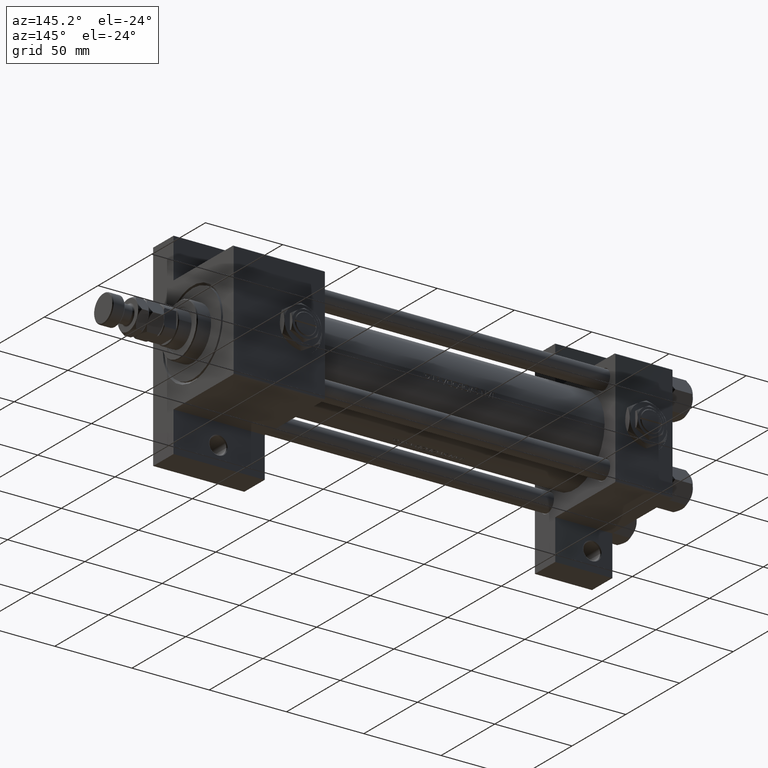
[diagram: clean part render]
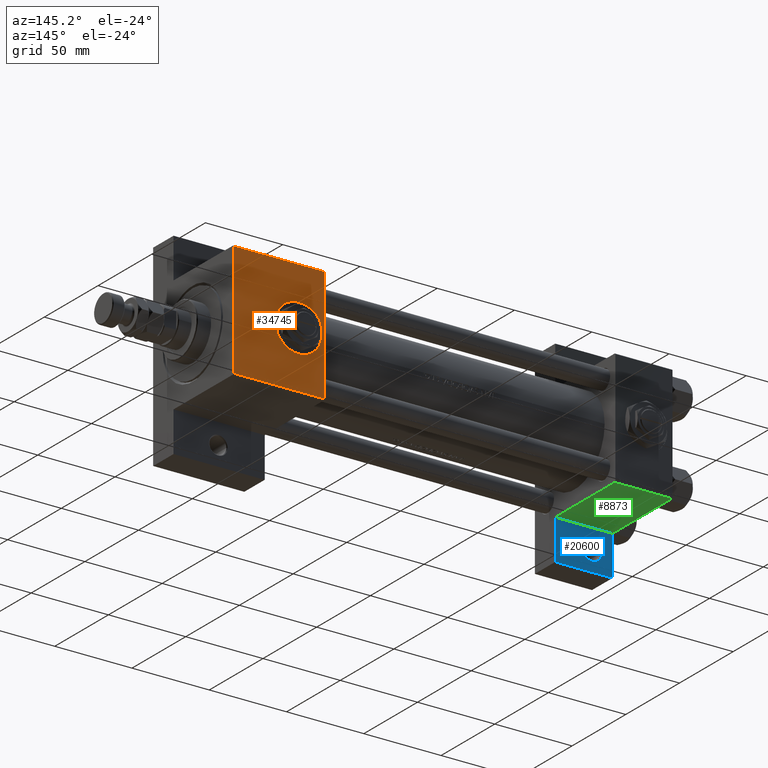
[diagram: same view with three faces highlighted in distinct colors, each labeled with its STEP entity id]
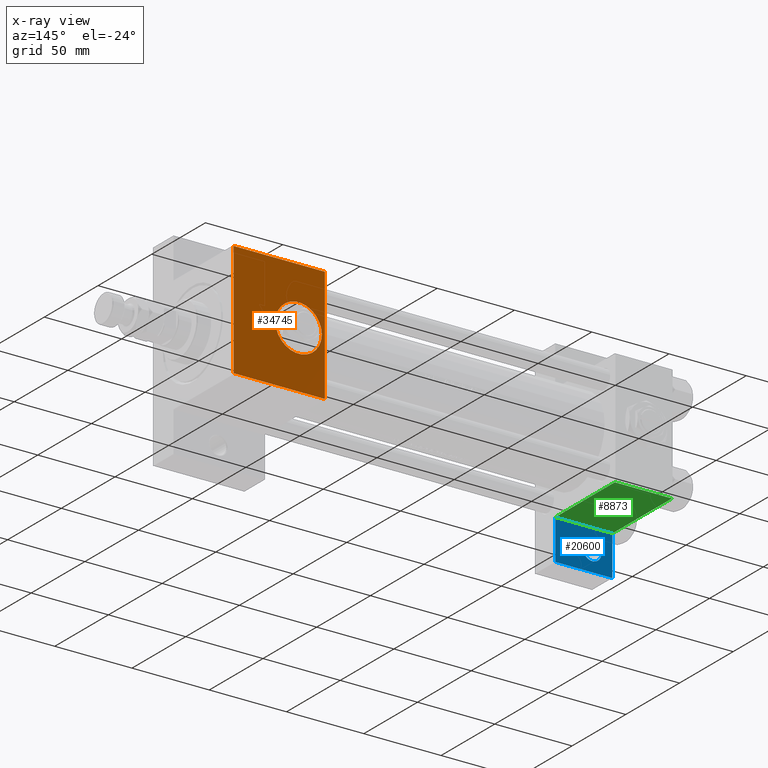
[diagram: x-ray of the same camera — body ghosted, the three highlighted faces saturated]
A machine part, auxiliary view with three faces highlighted in distinct colors.
The next image is the same camera in x-ray (body ghosted, the three faces saturated) — at least one of them is partly hidden behind the body in this view.
Their STEP definitions:

[orange] entity #34745 — the highlighted planar face has unit normal (0, -1, -0).
#444 = AXIS2_PLACEMENT_3D ( 'NONE', #37525, #41115, #17791 ) ;
#566 = ORIENTED_EDGE ( 'NONE', *, *, #45922, .T. ) ;
#921 = FACE_BOUND ( 'NONE', #45615, .T. ) ;
#1711 = CARTESIAN_POINT ( 'NONE',  ( 284.0000000000000568, 36.99999999999994316, 37.49999999999999289 ) ) ;
#4040 = LINE ( 'NONE', #7887, #17383 ) ;
#4176 = DIRECTION ( 'NONE',  ( 1.000000000000000000, 0.000000000000000000, 0.000000000000000000 ) ) ;
#6380 = ORIENTED_EDGE ( 'NONE', *, *, #32758, .T. ) ;
#6703 = DIRECTION ( 'NONE',  ( 0.000000000000000000, 0.000000000000000000, 1.000000000000000000 ) ) ;
#6782 = VERTEX_POINT ( 'NONE', #18685 ) ;
#7193 = ORIENTED_EDGE ( 'NONE', *, *, #27675, .F. ) ;
#7248 = DIRECTION ( 'NONE',  ( 0.000000000000000000, -1.000000000000000000, -1.850371707708594316E-16 ) ) ;
#7887 = CARTESIAN_POINT ( 'NONE',  ( 284.0000000000000568, -36.99999999999997158, 37.49999999999997868 ) ) ;
#8476 = AXIS2_PLACEMENT_3D ( 'NONE', #50332, #23139, #4176 ) ;
#8553 = VERTEX_POINT ( 'NONE', #1711 ) ;
#9278 = VECTOR ( 'NONE', #7248, 1000.000000000000000 ) ;
#9294 = VERTEX_POINT ( 'NONE', #27912 ) ;
#9356 = VECTOR ( 'NONE', #10519, 1000.000000000000000 ) ;
#10519 = DIRECTION ( 'NONE',  ( 0.000000000000000000, -1.000000000000000000, -1.850371707708594316E-16 ) ) ;
#14353 = ORIENTED_EDGE ( 'NONE', *, *, #28736, .F. ) ;
#16544 = FACE_OUTER_BOUND ( 'NONE', #33705, .T. ) ;
#16801 = PLANE ( 'NONE',  #444 ) ;
#17383 = VECTOR ( 'NONE', #24020, 1000.000000000000000 ) ;
#17791 = DIRECTION ( 'NONE',  ( 0.000000000000000000, 1.000000000000000000, 1.850371707708594316E-16 ) ) ;
#18215 = CARTESIAN_POINT ( 'NONE',  ( 242.0000000000000000, -6.938893903907226011E-15, 37.49999999999998579 ) ) ;
#18586 = VERTEX_POINT ( 'NONE', #47389 ) ;
#18685 = CARTESIAN_POINT ( 'NONE',  ( 226.9999999999999716, -5.101923705186191689E-15, 37.49999999999998579 ) ) ;
#18774 = LINE ( 'NONE', #38754, #9278 ) ;
#20796 = ORIENTED_EDGE ( 'NONE', *, *, #28875, .F. ) ;
#21204 = DIRECTION ( 'NONE',  ( -1.000000000000000000, 0.000000000000000000, 0.000000000000000000 ) ) ;
#22317 = DIRECTION ( 'NONE',  ( 1.000000000000000000, 0.000000000000000000, 0.000000000000000000 ) ) ;
#23139 = DIRECTION ( 'NONE',  ( 0.000000000000000000, 0.000000000000000000, 1.000000000000000000 ) ) ;
#24020 = DIRECTION ( 'NONE',  ( 1.000000000000000000, 0.000000000000000000, 0.000000000000000000 ) ) ;
#25656 = CARTESIAN_POINT ( 'NONE',  ( 225.0000000000000000, 37.50000000000000000, 37.49999999999999289 ) ) ;
#26712 = VERTEX_POINT ( 'NONE', #45686 ) ;
#27125 = EDGE_CURVE ( 'NONE', #9294, #39399, #4040, .T. ) ;
#27675 = EDGE_CURVE ( 'NONE', #8553, #39399, #18774, .T. ) ;
#27912 = CARTESIAN_POINT ( 'NONE',  ( 225.0000000000000000, -36.99999999999997158, 37.49999999999997868 ) ) ;
#28389 = CARTESIAN_POINT ( 'NONE',  ( 225.0000000000000000, 36.99999999999994316, 37.49999999999999289 ) ) ;
#28736 = EDGE_CURVE ( 'NONE', #18586, #6782, #40282, .T. ) ;
#28875 = EDGE_CURVE ( 'NONE', #6782, #18586, #42726, .T. ) ;
#31775 = CARTESIAN_POINT ( 'NONE',  ( 284.0000000000000568, -36.99999999999997158, 37.49999999999997868 ) ) ;
#32758 = EDGE_CURVE ( 'NONE', #26712, #9294, #50006, .T. ) ;
#33705 = EDGE_LOOP ( 'NONE', ( #7193, #566, #6380, #45337 ) ) ;
#34745 = ADVANCED_FACE ( 'NONE', ( #921, #16544 ), #16801, .F. ) ;
#36329 = VECTOR ( 'NONE', #21204, 1000.000000000000000 ) ;
#37525 = CARTESIAN_POINT ( 'NONE',  ( 284.0000000000000568, 37.50000000000000000, 37.49999999999999289 ) ) ;
#38754 = CARTESIAN_POINT ( 'NONE',  ( 284.0000000000000568, 37.50000000000000000, 37.49999999999999289 ) ) ;
#39399 = VERTEX_POINT ( 'NONE', #31775 ) ;
#40282 = CIRCLE ( 'NONE', #8476, 15.00000000000001421 ) ;
#41082 = AXIS2_PLACEMENT_3D ( 'NONE', #18215, #6703, #22317 ) ;
#41115 = DIRECTION ( 'NONE',  ( 0.000000000000000000, 1.850371707708594316E-16, -1.000000000000000000 ) ) ;
#42726 = CIRCLE ( 'NONE', #41082, 15.00000000000001421 ) ;
#45337 = ORIENTED_EDGE ( 'NONE', *, *, #27125, .T. ) ;
#45615 = EDGE_LOOP ( 'NONE', ( #14353, #20796 ) ) ;
#45686 = CARTESIAN_POINT ( 'NONE',  ( 225.0000000000000000, 36.99999999999994316, 37.49999999999999289 ) ) ;
#45922 = EDGE_CURVE ( 'NONE', #8553, #26712, #47624, .T. ) ;
#47389 = CARTESIAN_POINT ( 'NONE',  ( 257.0000000000000000, -6.938893903907226011E-15, 37.49999999999998579 ) ) ;
#47624 = LINE ( 'NONE', #28389, #36329 ) ;
#50006 = LINE ( 'NONE', #25656, #9356 ) ;
#50332 = CARTESIAN_POINT ( 'NONE',  ( 242.0000000000000000, -6.938893903907226011E-15, 37.49999999999998579 ) ) ;

[blue] entity #20600 — the highlighted planar face has unit normal (0, -1, 0).
#191 = VERTEX_POINT ( 'NONE', #49036 ) ;
#2283 = EDGE_CURVE ( 'NONE', #42459, #41932, #25635, .T. ) ;
#3785 = DIRECTION ( 'NONE',  ( -2.877097866686192789E-16, -1.000000000000000000, 0.000000000000000000 ) ) ;
#4100 = CARTESIAN_POINT ( 'NONE',  ( 37.00000000000000711, 37.50000000000000711, -18.50000000000000355 ) ) ;
#6257 = EDGE_CURVE ( 'NONE', #191, #19365, #46046, .T. ) ;
#6328 = ORIENTED_EDGE ( 'NONE', *, *, #41239, .T. ) ;
#6658 = AXIS2_PLACEMENT_3D ( 'NONE', #30631, #18843, #19098 ) ;
#8178 = DIRECTION ( 'NONE',  ( -1.000000000000000000, 0.000000000000000000, -0.000000000000000000 ) ) ;
#8296 = CARTESIAN_POINT ( 'NONE',  ( 8.470280871287256020E-15, 37.50000000000002842, -18.49999999999999645 ) ) ;
#9036 = ORIENTED_EDGE ( 'NONE', *, *, #6257, .T. ) ;
#9737 = EDGE_CURVE ( 'NONE', #30944, #191, #22998, .T. ) ;
#11872 = CARTESIAN_POINT ( 'NONE',  ( 37.00000000000001421, 63.50000000000001421, -18.50000000000000355 ) ) ;
#13287 = DIRECTION ( 'NONE',  ( 0.000000000000000000, 0.000000000000000000, -1.000000000000000000 ) ) ;
#13896 = CARTESIAN_POINT ( 'NONE',  ( 1.595073532467135441E-14, 63.50000000000000000, -18.50000000000000355 ) ) ;
#14434 = ORIENTED_EDGE ( 'NONE', *, *, #9737, .T. ) ;
#14712 = EDGE_LOOP ( 'NONE', ( #21291, #6328 ) ) ;
#14994 = VECTOR ( 'NONE', #18626, 1000.000000000000000 ) ;
#15560 = AXIS2_PLACEMENT_3D ( 'NONE', #36095, #13287, #8178 ) ;
#15878 = CARTESIAN_POINT ( 'NONE',  ( 12.99999999999999822, 50.99999999999997868, -18.50000000000000000 ) ) ;
#16378 = DIRECTION ( 'NONE',  ( 0.000000000000000000, 0.000000000000000000, -1.000000000000000000 ) ) ;
#17126 = FACE_BOUND ( 'NONE', #14712, .T. ) ;
#17752 = VECTOR ( 'NONE', #3785, 1000.000000000000000 ) ;
#18626 = DIRECTION ( 'NONE',  ( 1.000000000000000000, -3.750753461571474945E-16, 0.000000000000000000 ) ) ;
#18843 = DIRECTION ( 'NONE',  ( 0.000000000000000000, 0.000000000000000000, -1.000000000000000000 ) ) ;
#19098 = DIRECTION ( 'NONE',  ( -1.000000000000000000, 0.000000000000000000, 0.000000000000000000 ) ) ;
#19365 = VERTEX_POINT ( 'NONE', #4100 ) ;
#20600 = ADVANCED_FACE ( 'NONE', ( #17126, #27897 ), #48402, .F. ) ;
#21291 = ORIENTED_EDGE ( 'NONE', *, *, #2283, .T. ) ;
#22998 = LINE ( 'NONE', #38879, #17752 ) ;
#23602 = EDGE_CURVE ( 'NONE', #19365, #30243, #31582, .T. ) ;
#25635 = CIRCLE ( 'NONE', #50211, 5.999499999999966526 ) ;
#26290 = CIRCLE ( 'NONE', #6658, 5.999499999999966526 ) ;
#27487 = DIRECTION ( 'NONE',  ( 2.668805347656626678E-16, 1.000000000000000000, 0.000000000000000000 ) ) ;
#27874 = VECTOR ( 'NONE', #29512, 1000.000000000000000 ) ;
#27897 = FACE_OUTER_BOUND ( 'NONE', #44987, .T. ) ;
#29512 = DIRECTION ( 'NONE',  ( -1.000000000000000000, 0.000000000000000000, 0.000000000000000000 ) ) ;
#30018 = LINE ( 'NONE', #13896, #27874 ) ;
#30243 = VERTEX_POINT ( 'NONE', #37156 ) ;
#30631 = CARTESIAN_POINT ( 'NONE',  ( 12.99999999999999822, 50.99999999999997868, -18.50000000000000000 ) ) ;
#30944 = VERTEX_POINT ( 'NONE', #38048 ) ;
#31582 = LINE ( 'NONE', #11872, #45116 ) ;
#35603 = DIRECTION ( 'NONE',  ( -1.000000000000000000, 0.000000000000000000, 0.000000000000000000 ) ) ;
#36095 = CARTESIAN_POINT ( 'NONE',  ( 0.000000000000000000, 0.000000000000000000, -18.50000000000000000 ) ) ;
#37156 = CARTESIAN_POINT ( 'NONE',  ( 37.00000000000001421, 63.50000000000000000, -18.50000000000000355 ) ) ;
#38048 = CARTESIAN_POINT ( 'NONE',  ( 1.595073532467135441E-14, 63.50000000000000000, -18.50000000000000355 ) ) ;
#38574 = CARTESIAN_POINT ( 'NONE',  ( 7.000500000000030809, 50.99999999999997868, -18.50000000000000000 ) ) ;
#38879 = CARTESIAN_POINT ( 'NONE',  ( 1.595073532467135757E-14, 63.50000000000001421, -18.50000000000000355 ) ) ;
#39231 = EDGE_CURVE ( 'NONE', #30243, #30944, #30018, .T. ) ;
#41239 = EDGE_CURVE ( 'NONE', #41932, #42459, #26290, .T. ) ;
#41932 = VERTEX_POINT ( 'NONE', #38574 ) ;
#42459 = VERTEX_POINT ( 'NONE', #42998 ) ;
#42998 = CARTESIAN_POINT ( 'NONE',  ( 18.99949999999996564, 50.99999999999997868, -18.50000000000000000 ) ) ;
#43714 = ORIENTED_EDGE ( 'NONE', *, *, #23602, .T. ) ;
#44987 = EDGE_LOOP ( 'NONE', ( #14434, #9036, #43714, #47270 ) ) ;
#45116 = VECTOR ( 'NONE', #27487, 1000.000000000000000 ) ;
#46046 = LINE ( 'NONE', #8296, #14994 ) ;
#47270 = ORIENTED_EDGE ( 'NONE', *, *, #39231, .T. ) ;
#48402 = PLANE ( 'NONE',  #15560 ) ;
#49036 = CARTESIAN_POINT ( 'NONE',  ( 0.000000000000000000, 37.49999999999999289, -18.49999999999999645 ) ) ;
#50211 = AXIS2_PLACEMENT_3D ( 'NONE', #15878, #16378, #35603 ) ;

[green] entity #8873 — the highlighted planar face has unit normal (0, 0, -1).
#191 = VERTEX_POINT ( 'NONE', #49036 ) ;
#380 = CARTESIAN_POINT ( 'NONE',  ( 37.00000000000000000, 37.49999999999999289, 37.00000000000000000 ) ) ;
#2642 = VERTEX_POINT ( 'NONE', #35554 ) ;
#2707 = VECTOR ( 'NONE', #41798, 1000.000000000000000 ) ;
#4100 = CARTESIAN_POINT ( 'NONE',  ( 37.00000000000000711, 37.50000000000000711, -18.50000000000000355 ) ) ;
#5567 = EDGE_CURVE ( 'NONE', #2642, #191, #37220, .T. ) ;
#6257 = EDGE_CURVE ( 'NONE', #191, #19365, #46046, .T. ) ;
#7099 = ORIENTED_EDGE ( 'NONE', *, *, #46070, .T. ) ;
#8296 = CARTESIAN_POINT ( 'NONE',  ( 8.470280871287256020E-15, 37.50000000000002842, -18.49999999999999645 ) ) ;
#8873 = ADVANCED_FACE ( 'NONE', ( #9824 ), #37742, .T. ) ;
#9824 = FACE_OUTER_BOUND ( 'NONE', #27589, .T. ) ;
#10509 = VECTOR ( 'NONE', #49594, 1000.000000000000000 ) ;
#10543 = ORIENTED_EDGE ( 'NONE', *, *, #6257, .F. ) ;
#11265 = AXIS2_PLACEMENT_3D ( 'NONE', #33402, #25452, #41076 ) ;
#13361 = EDGE_CURVE ( 'NONE', #2642, #31996, #33951, .T. ) ;
#14994 = VECTOR ( 'NONE', #18626, 1000.000000000000000 ) ;
#18626 = DIRECTION ( 'NONE',  ( 1.000000000000000000, -3.750753461571474945E-16, 0.000000000000000000 ) ) ;
#19365 = VERTEX_POINT ( 'NONE', #4100 ) ;
#19798 = ORIENTED_EDGE ( 'NONE', *, *, #13361, .T. ) ;
#25452 = DIRECTION ( 'NONE',  ( -0.000000000000000000, 1.000000000000000000, 0.000000000000000000 ) ) ;
#27589 = EDGE_LOOP ( 'NONE', ( #10543, #40482, #19798, #7099 ) ) ;
#30586 = DIRECTION ( 'NONE',  ( 0.000000000000000000, 0.000000000000000000, -1.000000000000000000 ) ) ;
#31996 = VERTEX_POINT ( 'NONE', #380 ) ;
#33402 = CARTESIAN_POINT ( 'NONE',  ( 37.00000000000000000, 37.49999999999999289, 37.50000000000000000 ) ) ;
#33876 = CARTESIAN_POINT ( 'NONE',  ( 0.000000000000000000, 37.49999999999999289, 37.50000000000000000 ) ) ;
#33951 = LINE ( 'NONE', #50096, #10509 ) ;
#34186 = LINE ( 'NONE', #45970, #44490 ) ;
#35554 = CARTESIAN_POINT ( 'NONE',  ( 0.000000000000000000, 37.49999999999999289, 37.00000000000000000 ) ) ;
#37220 = LINE ( 'NONE', #33876, #2707 ) ;
#37742 = PLANE ( 'NONE',  #11265 ) ;
#40482 = ORIENTED_EDGE ( 'NONE', *, *, #5567, .F. ) ;
#41076 = DIRECTION ( 'NONE',  ( 0.000000000000000000, -0.000000000000000000, 1.000000000000000000 ) ) ;
#41798 = DIRECTION ( 'NONE',  ( 0.000000000000000000, 0.000000000000000000, -1.000000000000000000 ) ) ;
#44490 = VECTOR ( 'NONE', #30586, 1000.000000000000000 ) ;
#45970 = CARTESIAN_POINT ( 'NONE',  ( 37.00000000000000000, 37.49999999999999289, 37.50000000000000000 ) ) ;
#46046 = LINE ( 'NONE', #8296, #14994 ) ;
#46070 = EDGE_CURVE ( 'NONE', #31996, #19365, #34186, .T. ) ;
#49036 = CARTESIAN_POINT ( 'NONE',  ( 0.000000000000000000, 37.49999999999999289, -18.49999999999999645 ) ) ;
#49594 = DIRECTION ( 'NONE',  ( 1.000000000000000000, 0.000000000000000000, 0.000000000000000000 ) ) ;
#50096 = CARTESIAN_POINT ( 'NONE',  ( 37.00000000000000000, 37.49999999999999289, 37.00000000000000000 ) ) ;